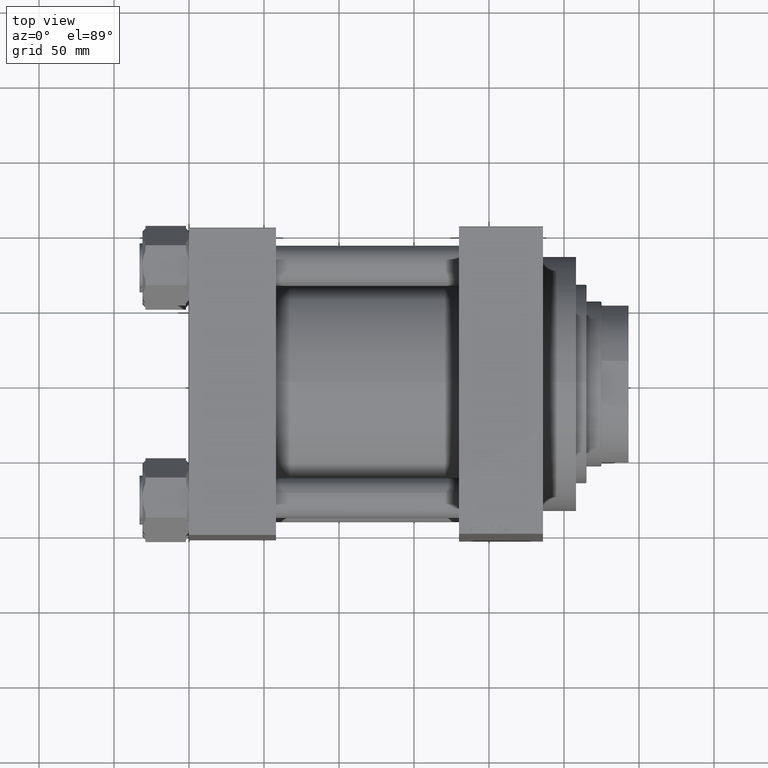
[diagram: clean part render]
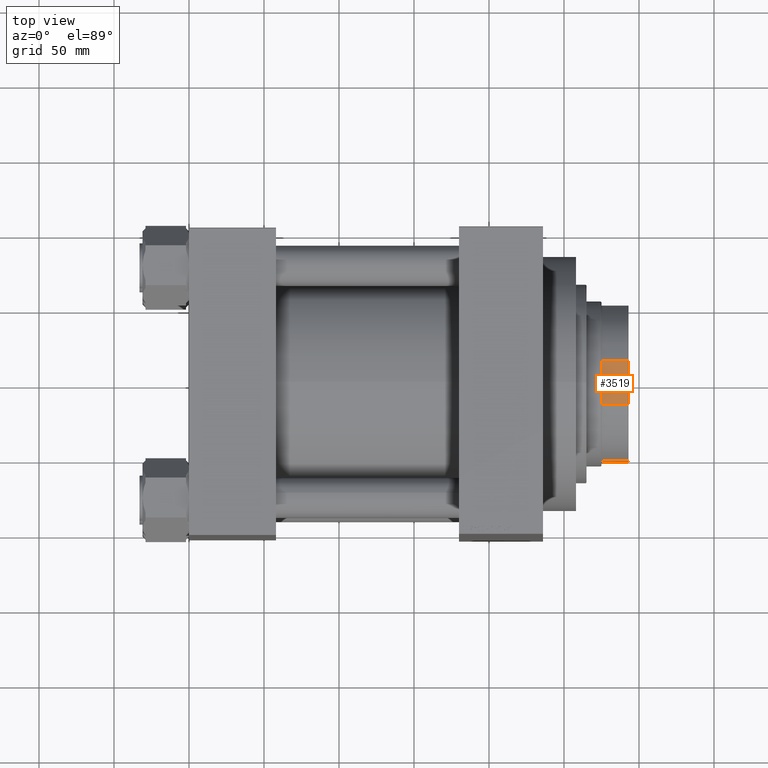
[diagram: same view with one face highlighted and labeled with its STEP entity id]
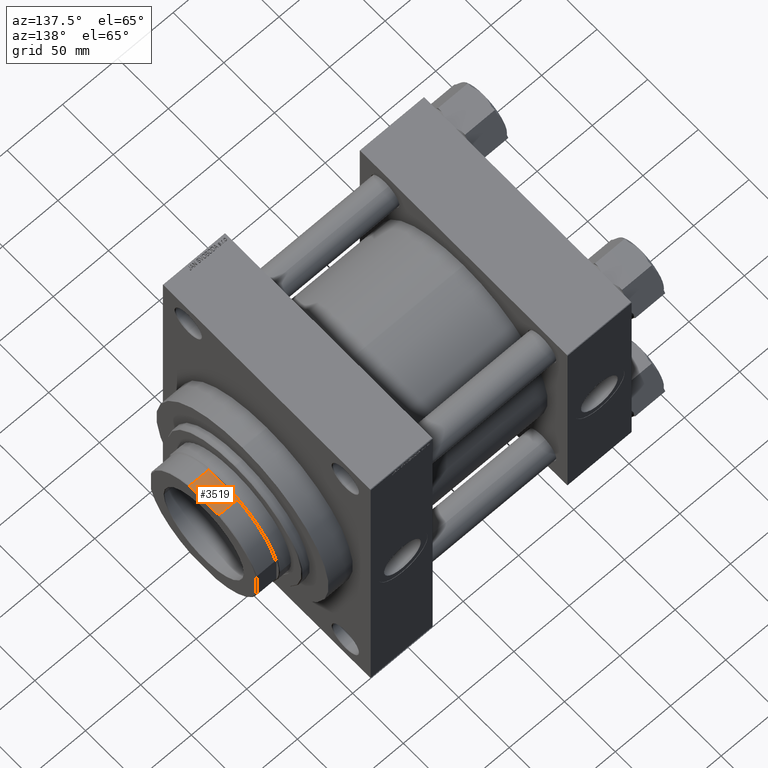
[diagram: same view with one face highlighted and labeled with its STEP entity id]
A machine part, top view. The second image highlights one B-rep face of the part: STEP entity #3519.
A second angle (auxiliary view) of the same face is appended — the face is thin or edge-on in the first view.
In plain terms, the highlighted planar face has unit normal (0, 0, -1).
Its self-contained STEP definition (entity closure, byte-faithful):
#340 = CARTESIAN_POINT ( 'NONE',  ( -14.56021977856099348, -52.00000000000001421, 217.5000000000000853 ) ) ;
#793 = PLANE ( 'NONE',  #10074 ) ;
#975 = DIRECTION ( 'NONE',  ( 1.000000000000000000, 0.000000000000000000, 0.000000000000000000 ) ) ;
#1620 = EDGE_CURVE ( 'NONE', #41751, #15647, #28441, .T. ) ;
#1678 = LINE ( 'NONE', #26593, #33597 ) ;
#2602 = CARTESIAN_POINT ( 'NONE',  ( -14.56021977856099348, -52.00000000000001421, -0.001000000000001000089 ) ) ;
#3519 = ADVANCED_FACE ( 'NONE', ( #15991 ), #793, .F. ) ;
#3656 = CARTESIAN_POINT ( 'NONE',  ( -14.56021977856099348, -52.00000000000001421, 234.5000000000000000 ) ) ;
#3857 = EDGE_CURVE ( 'NONE', #41751, #27414, #14621, .T. ) ;
#6110 = EDGE_CURVE ( 'NONE', #15370, #15647, #34967, .T. ) ;
#6251 = CARTESIAN_POINT ( 'NONE',  ( -13.24263005626827017, -51.99999999999999289, 234.8441323828177190 ) ) ;
#7557 = CARTESIAN_POINT ( 'NONE',  ( 14.56021977856099348, -52.00000000000001421, -0.001000000000001000089 ) ) ;
#9870 = ORIENTED_EDGE ( 'NONE', *, *, #19079, .T. ) ;
#10074 = AXIS2_PLACEMENT_3D ( 'NONE', #40896, #16223, #38238 ) ;
#10104 = CARTESIAN_POINT ( 'NONE',  ( -12.57974562540931096, -51.99999999999999289, 234.9999999999999716 ) ) ;
#10197 = CARTESIAN_POINT ( 'NONE',  ( 14.56021977856099348, -52.00000000000001421, 217.5000000000000568 ) ) ;
#10568 = CARTESIAN_POINT ( 'NONE',  ( 14.56021977856099348, -52.00000000000001421, 217.5000000000000568 ) ) ;
#11044 = ORIENTED_EDGE ( 'NONE', *, *, #19591, .T. ) ;
#12250 = CARTESIAN_POINT ( 'NONE',  ( 14.56021977856099348, -52.00000000000001421, 234.5000000000000000 ) ) ;
#12450 = CARTESIAN_POINT ( 'NONE',  ( 14.56021977856099348, -52.00000000000001421, 234.5000000000000000 ) ) ;
#13249 = ORIENTED_EDGE ( 'NONE', *, *, #3857, .F. ) ;
#14621 = LINE ( 'NONE', #29390, #19350 ) ;
#14711 = VECTOR ( 'NONE', #33662, 1000.000000000000000 ) ;
#15370 = VERTEX_POINT ( 'NONE', #340 ) ;
#15392 = EDGE_CURVE ( 'NONE', #15370, #17989, #30954, .T. ) ;
#15647 = VERTEX_POINT ( 'NONE', #3656 ) ;
#15991 = FACE_OUTER_BOUND ( 'NONE', #34929, .T. ) ;
#16223 = DIRECTION ( 'NONE',  ( 0.000000000000000000, 1.000000000000000000, 0.000000000000000000 ) ) ;
#17418 = ORIENTED_EDGE ( 'NONE', *, *, #24808, .T. ) ;
#17989 = VERTEX_POINT ( 'NONE', #27439 ) ;
#19079 = EDGE_CURVE ( 'NONE', #25152, #27414, #25129, .T. ) ;
#19138 = LINE ( 'NONE', #7557, #14711 ) ;
#19286 = B_SPLINE_CURVE_WITH_KNOTS ( 'NONE', 3,
 ( #39096, #46824, #20962, #10568 ),
 .UNSPECIFIED., .F., .F.,
 ( 4, 4 ),
 ( 0.2326759534966972576, 0.2344756307977074183 ),
 .UNSPECIFIED. ) ;
#19350 = VECTOR ( 'NONE', #44107, 1000.000000000000000 ) ;
#19591 = EDGE_CURVE ( 'NONE', #39719, #32933, #19286, .T. ) ;
#19688 = CARTESIAN_POINT ( 'NONE',  ( 16.31716887208082056, -52.00000000000001421, 216.9999999999999432 ) ) ;
#19924 = CARTESIAN_POINT ( 'NONE',  ( 13.90274083666018434, -52.00000000000001421, 234.6772784795157634 ) ) ;
#20962 = CARTESIAN_POINT ( 'NONE',  ( 15.14996206766911158, -52.00000000000001421, 217.3409856047754829 ) ) ;
#21445 = ORIENTED_EDGE ( 'NONE', *, *, #6110, .F. ) ;
#22071 = CARTESIAN_POINT ( 'NONE',  ( -14.56021977856099348, -52.00000000000001421, 217.5000000000000853 ) ) ;
#23041 = CARTESIAN_POINT ( 'NONE',  ( -15.73302009358793718, -52.00000000000001421, 217.1748927388089214 ) ) ;
#23157 = ORIENTED_EDGE ( 'NONE', *, *, #38662, .T. ) ;
#23169 = CARTESIAN_POINT ( 'NONE',  ( -12.57974562540931096, -51.99999999999999289, 234.9999999999999716 ) ) ;
#23937 = CARTESIAN_POINT ( 'NONE',  ( 12.57974562540931274, -51.99999999999999289, 234.9999999999999716 ) ) ;
#24808 = EDGE_CURVE ( 'NONE', #32933, #25152, #19138, .T. ) ;
#25129 = B_SPLINE_CURVE_WITH_KNOTS ( 'NONE', 3,
 ( #12450, #19924, #34678, #45785 ),
 .UNSPECIFIED., .F., .F.,
 ( 4, 4 ),
 ( 0.000000000000000000, 0.002042615448708306851 ),
 .UNSPECIFIED. ) ;
#25152 = VERTEX_POINT ( 'NONE', #12250 ) ;
#26182 = CARTESIAN_POINT ( 'NONE',  ( -15.14739213389988848, -52.00000000000001421, 217.3416785455254399 ) ) ;
#26593 = CARTESIAN_POINT ( 'NONE',  ( -51.99999999999997868, -51.99999999999999289, 216.9999999999999716 ) ) ;
#27414 = VERTEX_POINT ( 'NONE', #23937 ) ;
#27439 = CARTESIAN_POINT ( 'NONE',  ( -16.31716887208081346, -52.00000000000001421, 216.9999999999999432 ) ) ;
#28441 = B_SPLINE_CURVE_WITH_KNOTS ( 'NONE', 3,
 ( #10104, #6251, #46354, #35001 ),
 .UNSPECIFIED., .F., .F.,
 ( 4, 4 ),
 ( 1.734723475976807094E-18, 0.002042615448708306417 ),
 .UNSPECIFIED. ) ;
#29390 = CARTESIAN_POINT ( 'NONE',  ( -51.99999999999997868, -51.99999999999999289, 234.9999999999999716 ) ) ;
#30684 = ORIENTED_EDGE ( 'NONE', *, *, #15392, .T. ) ;
#30954 = B_SPLINE_CURVE_WITH_KNOTS ( 'NONE', 3,
 ( #22071, #26182, #23041, #40914 ),
 .UNSPECIFIED., .F., .F.,
 ( 4, 4 ),
 ( 0.1720800789490160854, 0.1739075435815052584 ),
 .UNSPECIFIED. ) ;
#32933 = VERTEX_POINT ( 'NONE', #10197 ) ;
#33597 = VECTOR ( 'NONE', #975, 1000.000000000000000 ) ;
#33662 = DIRECTION ( 'NONE',  ( -0.000000000000000000, -0.000000000000000000, 1.000000000000000000 ) ) ;
#34678 = CARTESIAN_POINT ( 'NONE',  ( 13.24263005626827017, -51.99999999999999289, 234.8441323828177190 ) ) ;
#34929 = EDGE_LOOP ( 'NONE', ( #17418, #9870, #13249, #42089, #21445, #30684, #23157, #11044 ) ) ;
#34967 = LINE ( 'NONE', #2602, #44115 ) ;
#35001 = CARTESIAN_POINT ( 'NONE',  ( -14.56021977856099348, -52.00000000000001421, 234.5000000000000000 ) ) ;
#38238 = DIRECTION ( 'NONE',  ( 0.000000000000000000, -0.000000000000000000, 1.000000000000000000 ) ) ;
#38662 = EDGE_CURVE ( 'NONE', #17989, #39719, #1678, .T. ) ;
#39096 = CARTESIAN_POINT ( 'NONE',  ( 16.31716887208082056, -52.00000000000001421, 216.9999999999999432 ) ) ;
#39719 = VERTEX_POINT ( 'NONE', #19688 ) ;
#40896 = CARTESIAN_POINT ( 'NONE',  ( -51.99999999999997868, -51.99999999999999289, 234.9999999999999716 ) ) ;
#40914 = CARTESIAN_POINT ( 'NONE',  ( -16.31716887208081346, -52.00000000000001421, 216.9999999999999432 ) ) ;
#41751 = VERTEX_POINT ( 'NONE', #23169 ) ;
#42089 = ORIENTED_EDGE ( 'NONE', *, *, #1620, .T. ) ;
#42700 = DIRECTION ( 'NONE',  ( -0.000000000000000000, -0.000000000000000000, 1.000000000000000000 ) ) ;
#44107 = DIRECTION ( 'NONE',  ( 1.000000000000000000, 0.000000000000000000, 0.000000000000000000 ) ) ;
#44115 = VECTOR ( 'NONE', #42700, 1000.000000000000000 ) ;
#45785 = CARTESIAN_POINT ( 'NONE',  ( 12.57974562540931274, -51.99999999999999289, 234.9999999999999716 ) ) ;
#46354 = CARTESIAN_POINT ( 'NONE',  ( -13.90274083666019500, -51.99999999999999289, 234.6772784795157634 ) ) ;
#46824 = CARTESIAN_POINT ( 'NONE',  ( 15.73551857855986746, -52.00000000000001421, 217.1741446984197239 ) ) ;